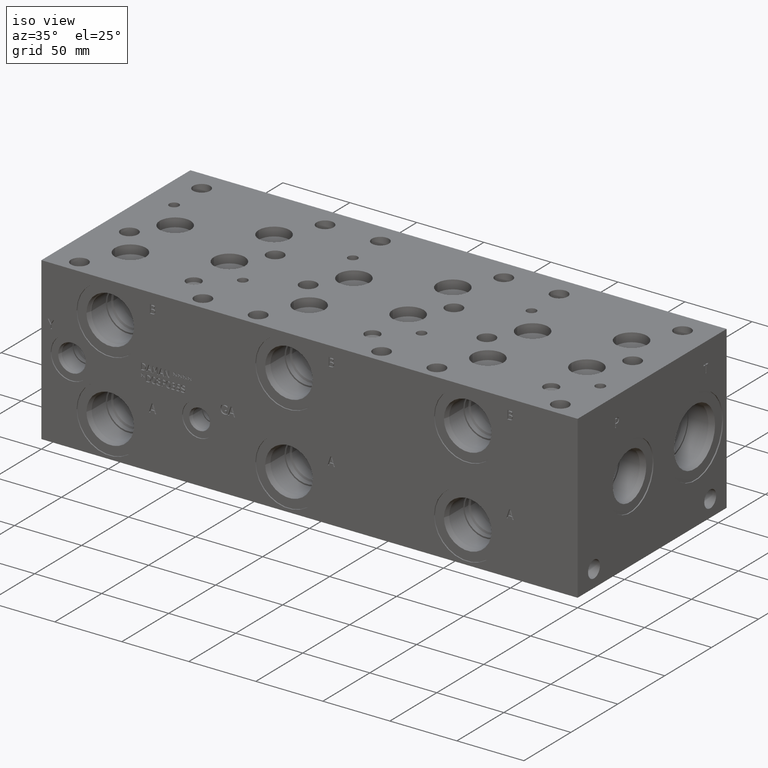
[diagram: clean part render]
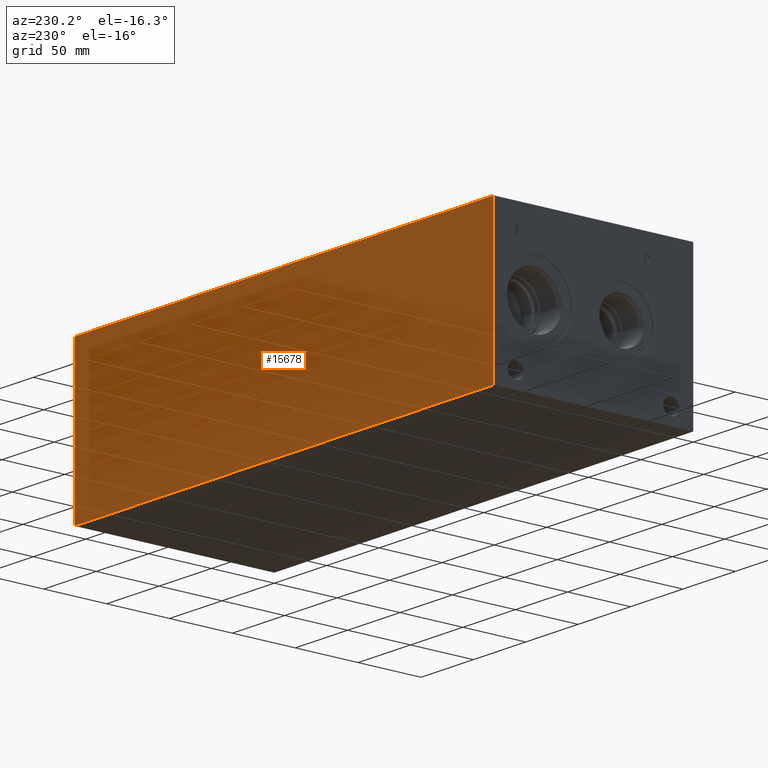
[diagram: tour spotlight — one face highlighted and labeled with its STEP entity id]
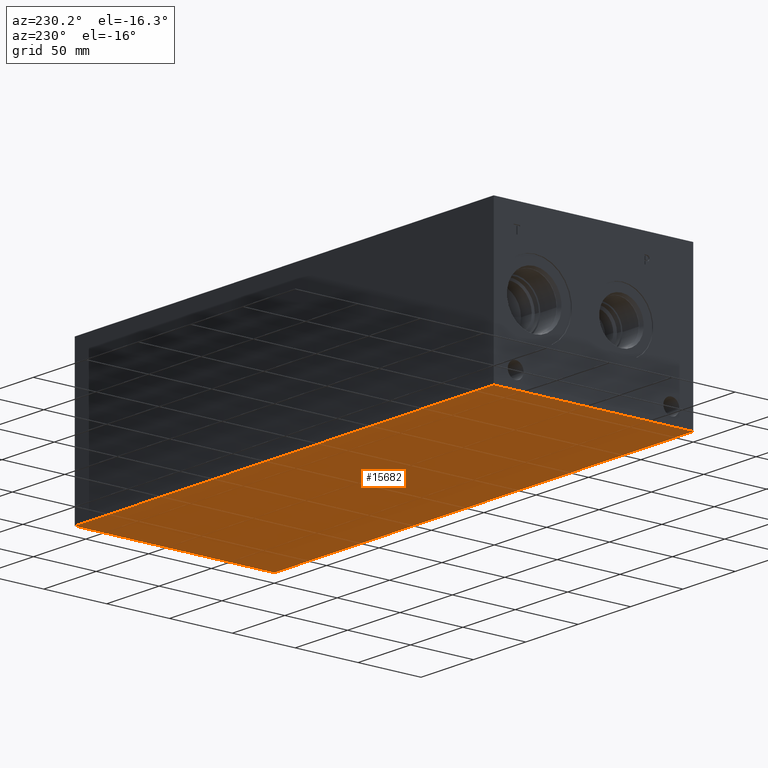
[diagram: tour spotlight — one face highlighted and labeled with its STEP entity id]
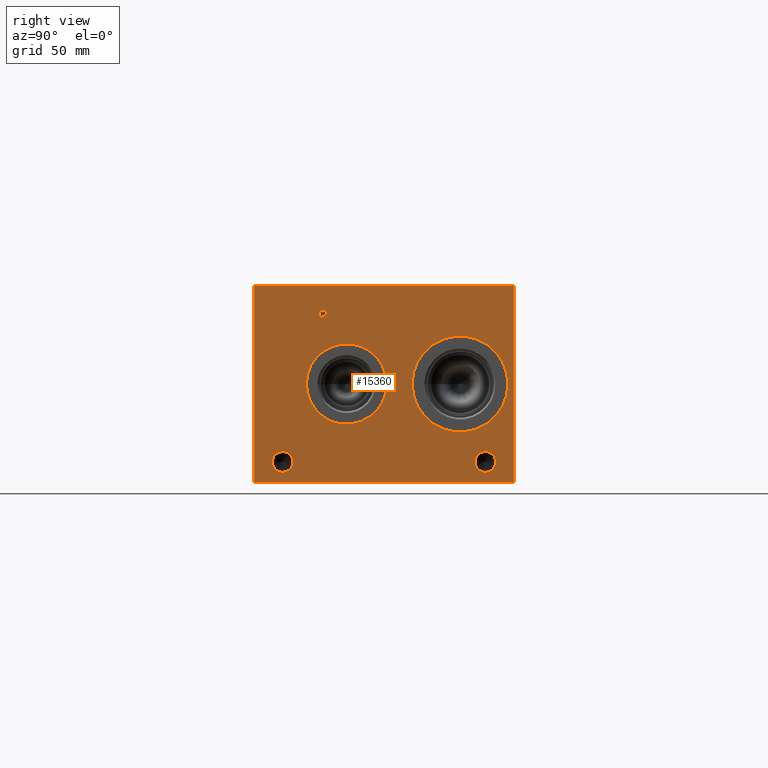
[diagram: tour spotlight — one face highlighted and labeled with its STEP entity id]
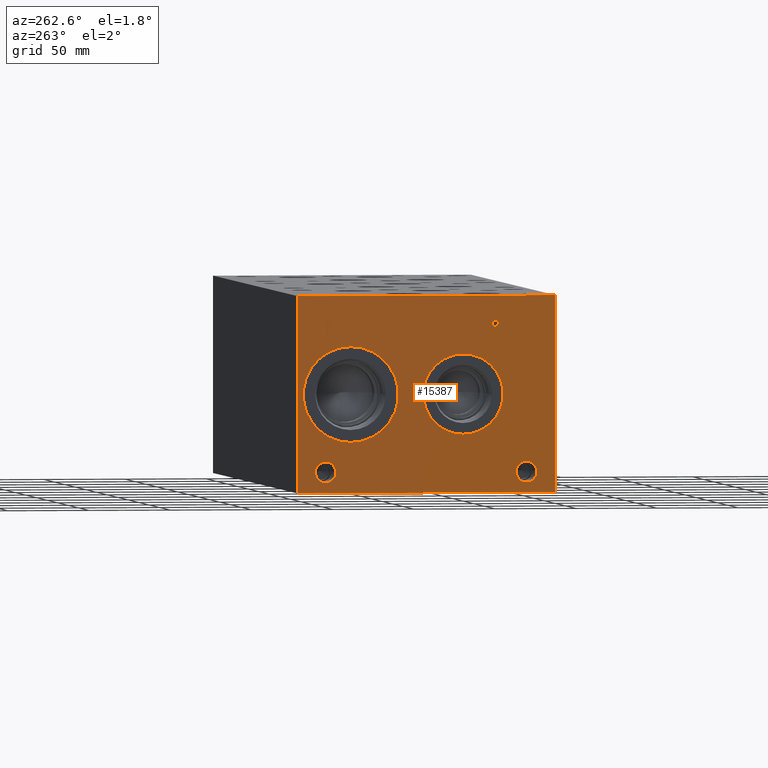
[diagram: tour spotlight — one face highlighted and labeled with its STEP entity id]
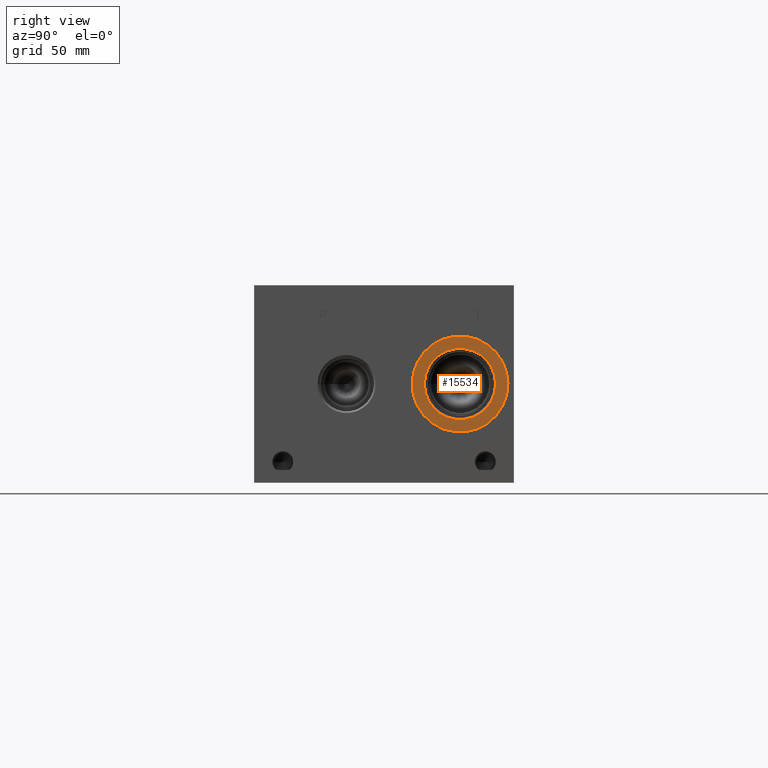
[diagram: tour spotlight — one face highlighted and labeled with its STEP entity id]
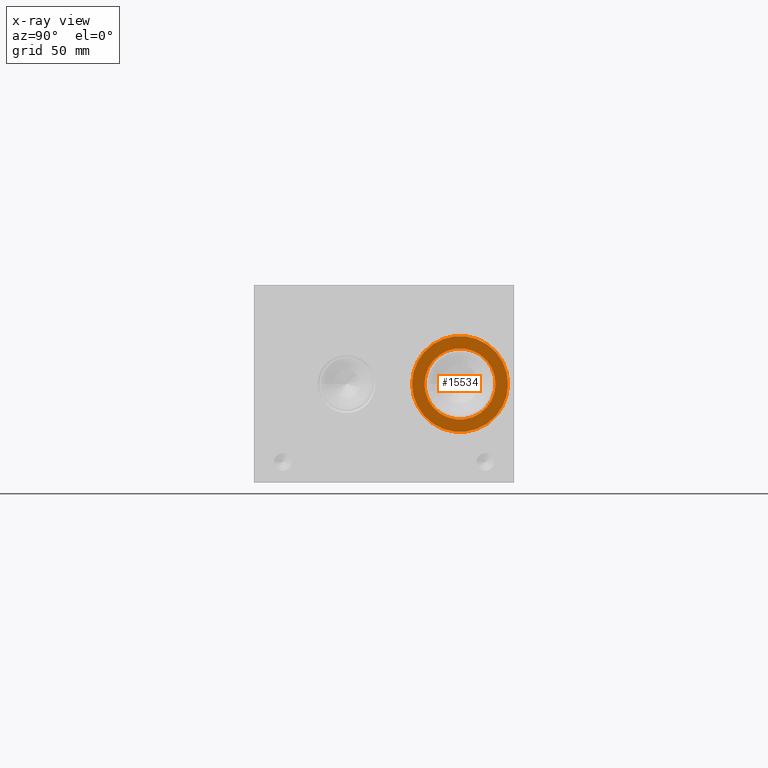
[diagram: x-ray of the same camera — body ghosted, this tour face saturated]
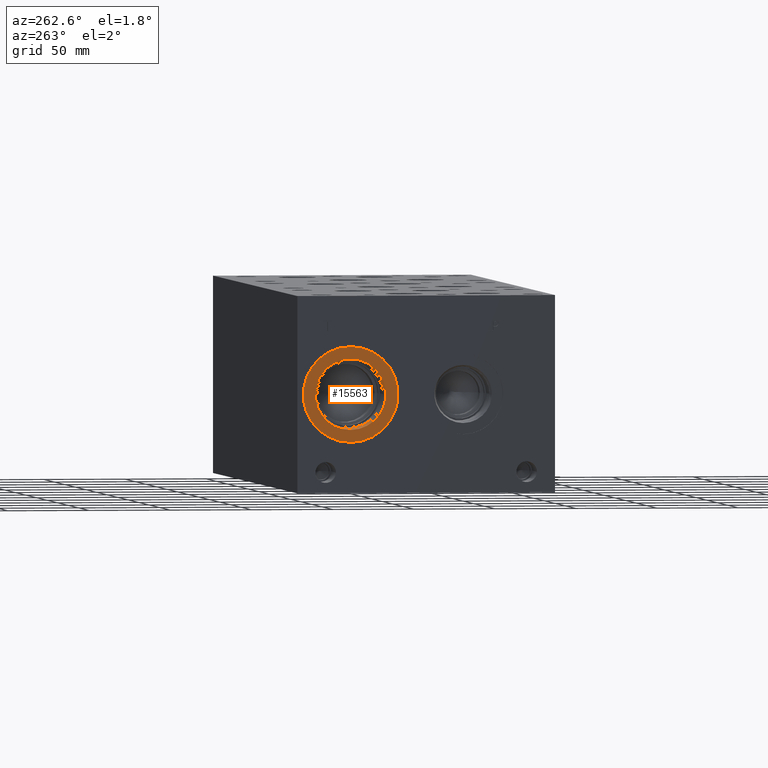
[diagram: tour spotlight — one face highlighted and labeled with its STEP entity id]
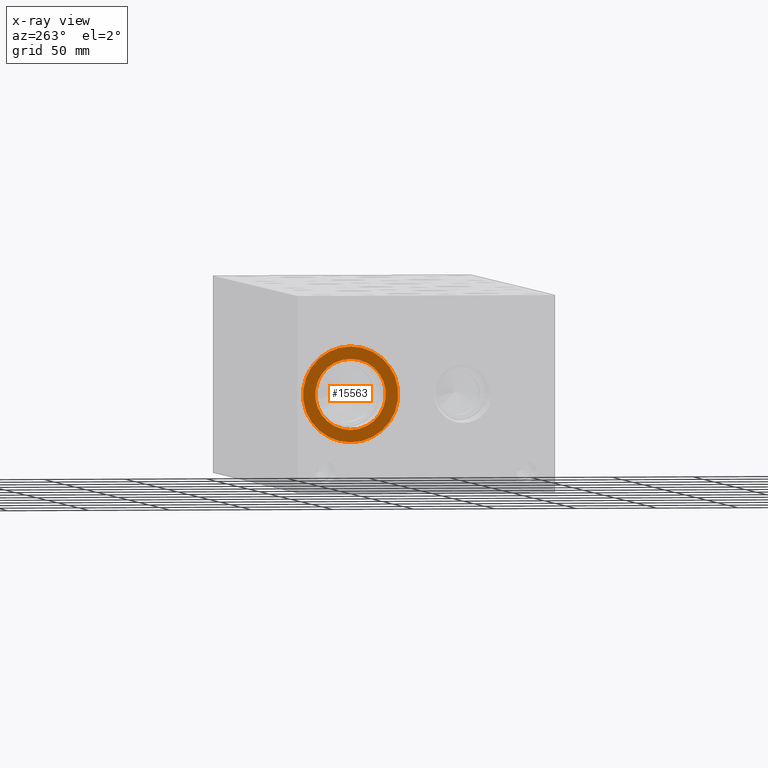
[diagram: x-ray of the same camera — body ghosted, this tour face saturated]
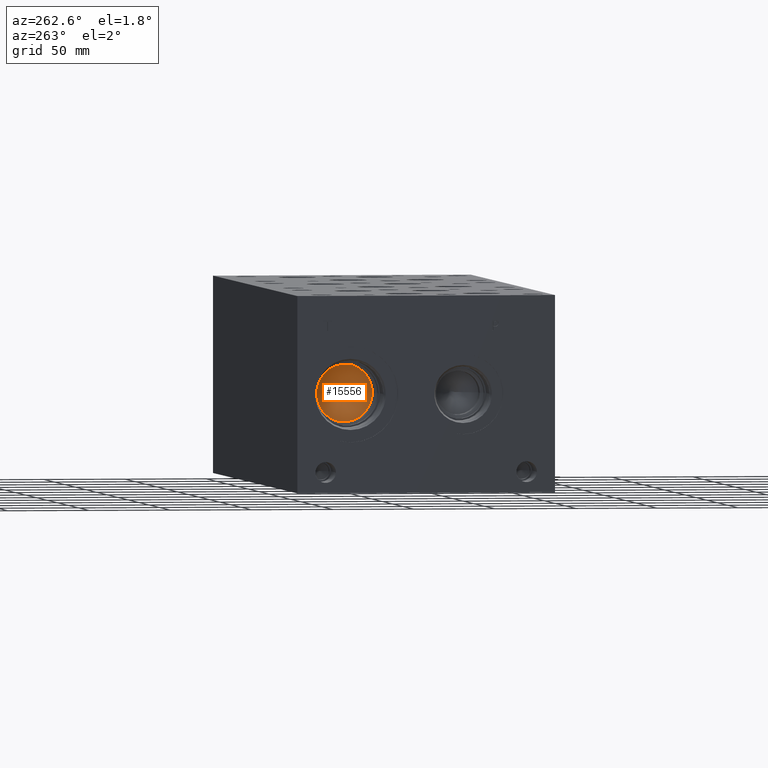
[diagram: tour spotlight — one face highlighted and labeled with its STEP entity id]
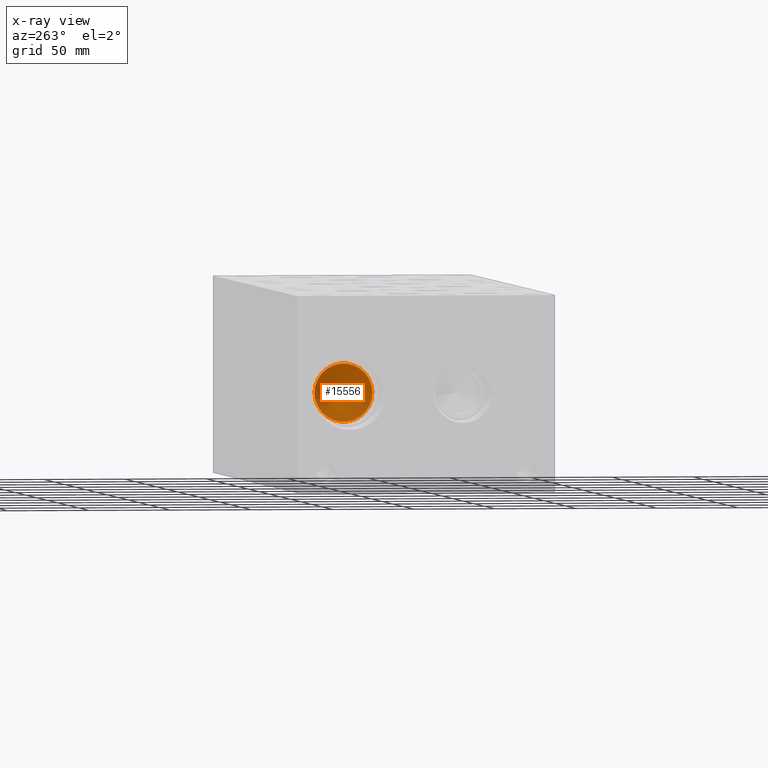
[diagram: x-ray of the same camera — body ghosted, this tour face saturated]
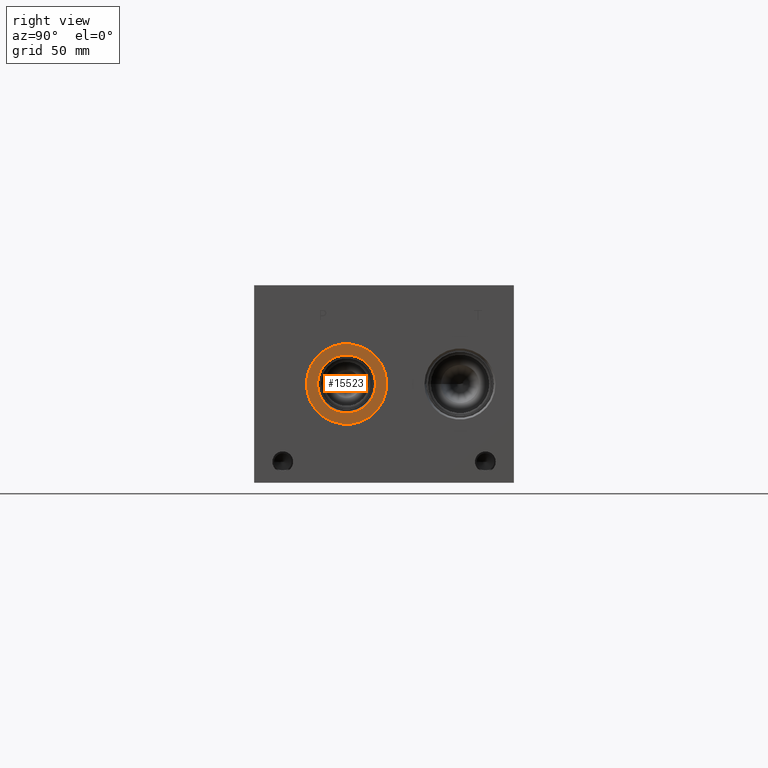
[diagram: tour spotlight — one face highlighted and labeled with its STEP entity id]
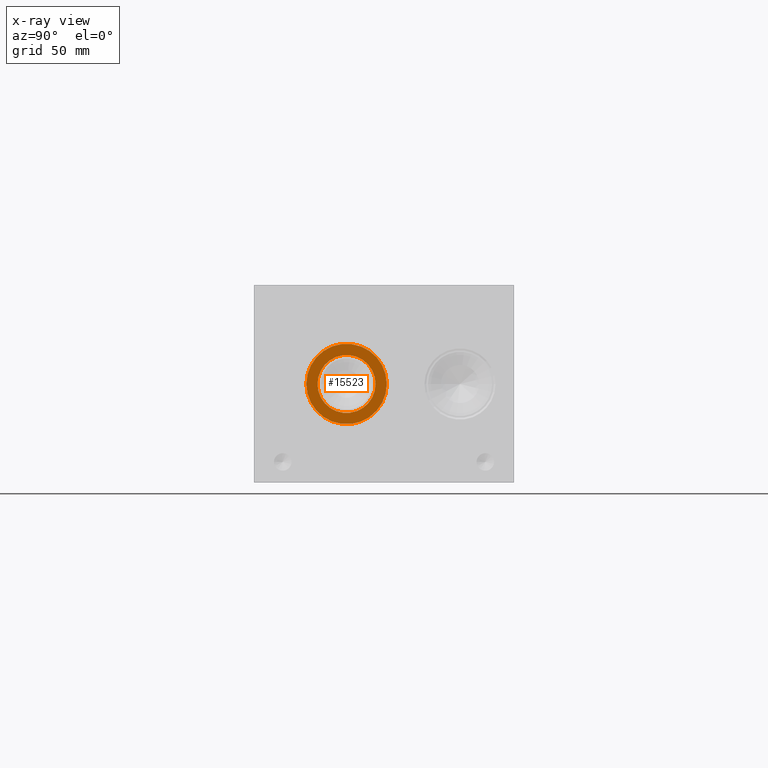
[diagram: x-ray of the same camera — body ghosted, this tour face saturated]
A machine part: a face-by-face anatomy tour. The part has 823 B-rep faces; the first image is the clean iso view, then the 8 largest visible faces are spotlighted one at a time (largest first), each with its STEP entity span.

Face 1 — auxiliary view, entity #15678. In plain terms, the highlighted planar face has unit normal (0, 1, 0).
Definition (entity closure, byte-faithful):
#2258=FACE_OUTER_BOUND('',#3195,.T.);
#3195=EDGE_LOOP('',(#13837,#13838,#13839,#13840));
#4245=LINE('',#25505,#5572);
#4305=LINE('',#25778,#5632);
#4564=LINE('',#27307,#5891);
#4565=LINE('',#27308,#5892);
#5572=VECTOR('',#18495,10.);
#5632=VECTOR('',#18609,10.);
#5891=VECTOR('',#20358,10.);
#5892=VECTOR('',#20359,10.);
#6819=VERTEX_POINT('',#25502);
#6820=VERTEX_POINT('',#25504);
#6877=VERTEX_POINT('',#25774);
#6878=VERTEX_POINT('',#25776);
#8784=EDGE_CURVE('',#6819,#6820,#4245,.T.);
#8868=EDGE_CURVE('',#6877,#6878,#4305,.T.);
#9581=EDGE_CURVE('',#6819,#6877,#4564,.T.);
#9582=EDGE_CURVE('',#6820,#6878,#4565,.T.);
#13837=ORIENTED_EDGE('',*,*,#9581,.T.);
#13838=ORIENTED_EDGE('',*,*,#8868,.T.);
#13839=ORIENTED_EDGE('',*,*,#9582,.F.);
#13840=ORIENTED_EDGE('',*,*,#8784,.F.);
#14338=PLANE('',#16806);
#15678=ADVANCED_FACE('',(#2258),#14338,.T.);
#16806=AXIS2_PLACEMENT_3D('',#27306,#20356,#20357);
#18495=DIRECTION('',(0.,0.,1.));
#18609=DIRECTION('',(0.,0.,1.));
#20356=DIRECTION('center_axis',(0.,1.,0.));
#20357=DIRECTION('ref_axis',(-1.,0.,0.));
#20358=DIRECTION('',(-1.,0.,0.));
#20359=DIRECTION('',(-1.,0.,0.));
#25502=CARTESIAN_POINT('',(400.05,158.75,0.));
#25504=CARTESIAN_POINT('',(400.05,158.75,120.65));
#25505=CARTESIAN_POINT('',(400.05,158.75,0.));
#25774=CARTESIAN_POINT('',(0.,158.75,0.));
#25776=CARTESIAN_POINT('',(0.,158.75,120.65));
#25778=CARTESIAN_POINT('',(0.,158.75,0.));
#27306=CARTESIAN_POINT('Origin',(400.05,158.75,0.));
#27307=CARTESIAN_POINT('',(400.05,158.75,0.));
#27308=CARTESIAN_POINT('',(400.05,158.75,120.65));

Face 2 — auxiliary view, entity #15682. In plain terms, the highlighted planar face has unit normal (0, 0, 1).
Definition (entity closure, byte-faithful):
#2262=FACE_OUTER_BOUND('',#3238,.T.);
#3238=EDGE_LOOP('',(#13937,#13938,#13939,#13940));
#3272=LINE('',#20439,#4599);
#4244=LINE('',#25503,#5571);
#4303=LINE('',#25775,#5630);
#4564=LINE('',#27307,#5891);
#4599=VECTOR('',#16872,10.);
#5571=VECTOR('',#18494,10.);
#5630=VECTOR('',#18607,10.);
#5891=VECTOR('',#20358,10.);
#5915=VERTEX_POINT('',#20437);
#5916=VERTEX_POINT('',#20438);
#6819=VERTEX_POINT('',#25502);
#6877=VERTEX_POINT('',#25774);
#7437=EDGE_CURVE('',#5915,#5916,#3272,.T.);
#8783=EDGE_CURVE('',#5916,#6819,#4244,.T.);
#8866=EDGE_CURVE('',#6877,#5915,#4303,.T.);
#9581=EDGE_CURVE('',#6819,#6877,#4564,.T.);
#13937=ORIENTED_EDGE('',*,*,#7437,.F.);
#13938=ORIENTED_EDGE('',*,*,#8866,.F.);
#13939=ORIENTED_EDGE('',*,*,#9581,.F.);
#13940=ORIENTED_EDGE('',*,*,#8783,.F.);
#14342=PLANE('',#16810);
#15682=ADVANCED_FACE('',(#2262),#14342,.F.);
#16810=AXIS2_PLACEMENT_3D('',#27312,#20366,#20367);
#16872=DIRECTION('',(1.,0.,0.));
#18494=DIRECTION('',(0.,1.,0.));
#18607=DIRECTION('',(0.,-1.,0.));
#20358=DIRECTION('',(-1.,0.,0.));
#20366=DIRECTION('center_axis',(0.,0.,1.));
#20367=DIRECTION('ref_axis',(1.,0.,0.));
#20437=CARTESIAN_POINT('',(0.,0.,0.));
#20438=CARTESIAN_POINT('',(400.05,0.,0.));
#20439=CARTESIAN_POINT('',(0.,0.,0.));
#25502=CARTESIAN_POINT('',(400.05,158.75,0.));
#25503=CARTESIAN_POINT('',(400.05,0.,0.));
#25774=CARTESIAN_POINT('',(0.,158.75,0.));
#25775=CARTESIAN_POINT('',(0.,158.75,0.));
#27307=CARTESIAN_POINT('',(400.05,158.75,0.));
#27312=CARTESIAN_POINT('Origin',(200.025,79.375,0.));

Face 3 — right view, entity #15360. In plain terms, the highlighted planar face has unit normal (1, 0, 0).
Definition (entity closure, byte-faithful):
#451=CIRCLE('',#16035,29.2862);
#452=CIRCLE('',#16036,29.2862);
#453=CIRCLE('',#16037,24.5618);
#454=CIRCLE('',#16038,24.5618);
#455=CIRCLE('',#16039,6.35);
#456=CIRCLE('',#16040,6.35);
#457=CIRCLE('',#16041,6.35);
#458=CIRCLE('',#16042,6.35);
#1263=B_SPLINE_CURVE_WITH_KNOTS('',2,(#25404,#25405,#25406,#25407),
 .UNSPECIFIED.,.F.,.F.,(3,1,3),(0.,1.,2.),.UNSPECIFIED.);
#1265=B_SPLINE_CURVE_WITH_KNOTS('',2,(#25425,#25426,#25427,#25428),
 .UNSPECIFIED.,.F.,.F.,(3,1,3),(0.,1.,2.),.UNSPECIFIED.);
#1267=B_SPLINE_CURVE_WITH_KNOTS('',2,(#25474,#25475,#25476,#25477),
 .UNSPECIFIED.,.F.,.F.,(3,1,3),(0.,1.,2.),.UNSPECIFIED.);
#1269=B_SPLINE_CURVE_WITH_KNOTS('',2,(#25492,#25493,#25494,#25495),
 .UNSPECIFIED.,.F.,.F.,(3,1,3),(0.,1.,2.),.UNSPECIFIED.);
#1342=FACE_BOUND('',#2819,.T.);
#1343=FACE_BOUND('',#2820,.T.);
#1344=FACE_BOUND('',#2821,.T.);
#1345=FACE_BOUND('',#2822,.T.);
#1346=FACE_BOUND('',#2823,.T.);
#1347=FACE_BOUND('',#2824,.T.);
#1940=FACE_OUTER_BOUND('',#2818,.T.);
#2818=EDGE_LOOP('',(#12298,#12299,#12300,#12301));
#2819=EDGE_LOOP('',(#12302,#12303));
#2820=EDGE_LOOP('',(#12304,#12305));
#2821=EDGE_LOOP('',(#12306,#12307));
#2822=EDGE_LOOP('',(#12308,#12309));
#2823=EDGE_LOOP('',(#12310,#12311,#12312,#12313,#12314,#12315,#12316,#12317));
#2824=EDGE_LOOP('',(#12318,#12319,#12320,#12321,#12322,#12323,#12324,#12325,
#12326));
#3273=LINE('',#20441,#4600);
#4228=LINE('',#25437,#5555);
#4231=LINE('',#25443,#5558);
#4234=LINE('',#25449,#5561);
#4237=LINE('',#25455,#5564);
#4240=LINE('',#25461,#5567);
#4244=LINE('',#25503,#5571);
#4245=LINE('',#25505,#5572);
#4246=LINE('',#25506,#5573);
#4247=LINE('',#25525,#5574);
#4248=LINE('',#25527,#5575);
#4249=LINE('',#25529,#5576);
#4250=LINE('',#25531,#5577);
#4251=LINE('',#25533,#5578);
#4252=LINE('',#25535,#5579);
#4253=LINE('',#25537,#5580);
#4254=LINE('',#25538,#5581);
#4600=VECTOR('',#16873,10.);
#5555=VECTOR('',#18466,10.);
#5558=VECTOR('',#18471,10.);
#5561=VECTOR('',#18476,10.);
#5564=VECTOR('',#18481,10.);
#5567=VECTOR('',#18486,10.);
#5571=VECTOR('',#18494,10.);
#5572=VECTOR('',#18495,10.);
#5573=VECTOR('',#18496,10.);
#5574=VECTOR('',#18513,10.);
#5575=VECTOR('',#18514,10.);
#5576=VECTOR('',#18515,10.);
#5577=VECTOR('',#18516,10.);
#5578=VECTOR('',#18517,10.);
#5579=VECTOR('',#18518,10.);
#5580=VECTOR('',#18519,10.);
#5581=VECTOR('',#18520,10.);
#5916=VERTEX_POINT('',#20438);
#5917=VERTEX_POINT('',#20440);
#6801=VERTEX_POINT('',#25402);
#6802=VERTEX_POINT('',#25403);
#6805=VERTEX_POINT('',#25424);
#6807=VERTEX_POINT('',#25436);
#6809=VERTEX_POINT('',#25442);
#6811=VERTEX_POINT('',#25448);
#6813=VERTEX_POINT('',#25454);
#6815=VERTEX_POINT('',#25460);
#6817=VERTEX_POINT('',#25473);
#6819=VERTEX_POINT('',#25502);
#6820=VERTEX_POINT('',#25504);
#6821=VERTEX_POINT('',#25507);
#6822=VERTEX_POINT('',#25508);
#6823=VERTEX_POINT('',#25511);
#6824=VERTEX_POINT('',#25512);
#6825=VERTEX_POINT('',#25515);
#6826=VERTEX_POINT('',#25516);
#6827=VERTEX_POINT('',#25519);
#6828=VERTEX_POINT('',#25520);
#6829=VERTEX_POINT('',#25523);
#6830=VERTEX_POINT('',#25524);
#6831=VERTEX_POINT('',#25526);
#6832=VERTEX_POINT('',#25528);
#6833=VERTEX_POINT('',#25530);
#6834=VERTEX_POINT('',#25532);
#6835=VERTEX_POINT('',#25534);
#6836=VERTEX_POINT('',#25536);
#7438=EDGE_CURVE('',#5916,#5917,#3273,.T.);
#8756=EDGE_CURVE('',#6801,#6802,#1263,.T.);
#8760=EDGE_CURVE('',#6805,#6801,#1265,.T.);
#8763=EDGE_CURVE('',#6807,#6805,#4228,.T.);
#8766=EDGE_CURVE('',#6809,#6807,#4231,.T.);
#8769=EDGE_CURVE('',#6811,#6809,#4234,.T.);
#8772=EDGE_CURVE('',#6813,#6811,#4237,.T.);
#8775=EDGE_CURVE('',#6815,#6813,#4240,.T.);
#8778=EDGE_CURVE('',#6817,#6815,#1267,.T.);
#8781=EDGE_CURVE('',#6802,#6817,#1269,.T.);
#8783=EDGE_CURVE('',#5916,#6819,#4244,.T.);
#8784=EDGE_CURVE('',#6819,#6820,#4245,.T.);
#8785=EDGE_CURVE('',#5917,#6820,#4246,.T.);
#8786=EDGE_CURVE('',#6821,#6822,#451,.T.);
#8787=EDGE_CURVE('',#6822,#6821,#452,.T.);
#8788=EDGE_CURVE('',#6823,#6824,#453,.T.);
#8789=EDGE_CURVE('',#6824,#6823,#454,.T.);
#8790=EDGE_CURVE('',#6825,#6826,#455,.T.);
#8791=EDGE_CURVE('',#6826,#6825,#456,.T.);
#8792=EDGE_CURVE('',#6827,#6828,#457,.T.);
#8793=EDGE_CURVE('',#6828,#6827,#458,.T.);
#8794=EDGE_CURVE('',#6829,#6830,#4247,.T.);
#8795=EDGE_CURVE('',#6830,#6831,#4248,.T.);
#8796=EDGE_CURVE('',#6831,#6832,#4249,.T.);
#8797=EDGE_CURVE('',#6832,#6833,#4250,.T.);
#8798=EDGE_CURVE('',#6833,#6834,#4251,.T.);
#8799=EDGE_CURVE('',#6834,#6835,#4252,.T.);
#8800=EDGE_CURVE('',#6835,#6836,#4253,.T.);
#8801=EDGE_CURVE('',#6836,#6829,#4254,.T.);
#12298=ORIENTED_EDGE('',*,*,#8783,.T.);
#12299=ORIENTED_EDGE('',*,*,#8784,.T.);
#12300=ORIENTED_EDGE('',*,*,#8785,.F.);
#12301=ORIENTED_EDGE('',*,*,#7438,.F.);
#12302=ORIENTED_EDGE('',*,*,#8786,.T.);
#12303=ORIENTED_EDGE('',*,*,#8787,.T.);
#12304=ORIENTED_EDGE('',*,*,#8788,.T.);
#12305=ORIENTED_EDGE('',*,*,#8789,.T.);
#12306=ORIENTED_EDGE('',*,*,#8790,.T.);
#12307=ORIENTED_EDGE('',*,*,#8791,.T.);
#12308=ORIENTED_EDGE('',*,*,#8792,.T.);
#12309=ORIENTED_EDGE('',*,*,#8793,.T.);
#12310=ORIENTED_EDGE('',*,*,#8794,.T.);
#12311=ORIENTED_EDGE('',*,*,#8795,.T.);
#12312=ORIENTED_EDGE('',*,*,#8796,.T.);
#12313=ORIENTED_EDGE('',*,*,#8797,.T.);
#12314=ORIENTED_EDGE('',*,*,#8798,.T.);
#12315=ORIENTED_EDGE('',*,*,#8799,.T.);
#12316=ORIENTED_EDGE('',*,*,#8800,.T.);
#12317=ORIENTED_EDGE('',*,*,#8801,.T.);
#12318=ORIENTED_EDGE('',*,*,#8756,.T.);
#12319=ORIENTED_EDGE('',*,*,#8781,.T.);
#12320=ORIENTED_EDGE('',*,*,#8778,.T.);
#12321=ORIENTED_EDGE('',*,*,#8775,.T.);
#12322=ORIENTED_EDGE('',*,*,#8772,.T.);
#12323=ORIENTED_EDGE('',*,*,#8769,.T.);
#12324=ORIENTED_EDGE('',*,*,#8766,.T.);
#12325=ORIENTED_EDGE('',*,*,#8763,.T.);
#12326=ORIENTED_EDGE('',*,*,#8760,.T.);
#14262=PLANE('',#16034);
#15360=ADVANCED_FACE('',(#1940,#1342,#1343,#1344,#1345,#1346,#1347),#14262,
 .T.);
#16034=AXIS2_PLACEMENT_3D('',#25501,#18492,#18493);
#16035=AXIS2_PLACEMENT_3D('',#25509,#18497,#18498);
#16036=AXIS2_PLACEMENT_3D('',#25510,#18499,#18500);
#16037=AXIS2_PLACEMENT_3D('',#25513,#18501,#18502);
#16038=AXIS2_PLACEMENT_3D('',#25514,#18503,#18504);
#16039=AXIS2_PLACEMENT_3D('',#25517,#18505,#18506);
#16040=AXIS2_PLACEMENT_3D('',#25518,#18507,#18508);
#16041=AXIS2_PLACEMENT_3D('',#25521,#18509,#18510);
#16042=AXIS2_PLACEMENT_3D('',#25522,#18511,#18512);
#16873=DIRECTION('',(0.,0.,1.));
#18466=DIRECTION('',(0.,1.,0.));
#18471=DIRECTION('',(0.,0.,1.));
#18476=DIRECTION('',(0.,-1.,0.));
#18481=DIRECTION('',(0.,0.,-1.));
#18486=DIRECTION('',(0.,-1.,0.));
#18492=DIRECTION('center_axis',(1.,0.,0.));
#18493=DIRECTION('ref_axis',(0.,1.,0.));
#18494=DIRECTION('',(0.,1.,0.));
#18495=DIRECTION('',(0.,0.,1.));
#18496=DIRECTION('',(0.,1.,0.));
#18497=DIRECTION('center_axis',(-1.,0.,0.));
#18498=DIRECTION('ref_axis',(0.,1.,0.));
#18499=DIRECTION('center_axis',(-1.,0.,0.));
#18500=DIRECTION('ref_axis',(0.,1.,0.));
#18501=DIRECTION('center_axis',(-1.,0.,0.));
#18502=DIRECTION('ref_axis',(0.,1.,0.));
#18503=DIRECTION('center_axis',(-1.,0.,0.));
#18504=DIRECTION('ref_axis',(0.,1.,0.));
#18505=DIRECTION('center_axis',(-1.,0.,0.));
#18506=DIRECTION('ref_axis',(0.,1.,0.));
#18507=DIRECTION('center_axis',(-1.,0.,0.));
#18508=DIRECTION('ref_axis',(0.,1.,0.));
#18509=DIRECTION('center_axis',(-1.,0.,0.));
#18510=DIRECTION('ref_axis',(0.,1.,0.));
#18511=DIRECTION('center_axis',(-1.,0.,0.));
#18512=DIRECTION('ref_axis',(0.,1.,0.));
#18513=DIRECTION('',(0.,-1.,0.));
#18514=DIRECTION('',(0.,0.,1.));
#18515=DIRECTION('',(0.,-1.,0.));
#18516=DIRECTION('',(0.,0.,1.));
#18517=DIRECTION('',(0.,1.,0.));
#18518=DIRECTION('',(0.,0.,-1.));
#18519=DIRECTION('',(0.,-1.,0.));
#18520=DIRECTION('',(0.,0.,-1.));
#20438=CARTESIAN_POINT('',(400.05,0.,0.));
#20440=CARTESIAN_POINT('',(400.05,0.,120.65));
#20441=CARTESIAN_POINT('',(400.05,0.,0.));
#25402=CARTESIAN_POINT('',(400.05,43.3721672023594,105.140768143971));
#25403=CARTESIAN_POINT('',(400.05,44.128609654532,103.622737372604));
#25404=CARTESIAN_POINT('Ctrl Pts',(400.05,43.3721672023594,105.140768143971));
#25405=CARTESIAN_POINT('Ctrl Pts',(400.05,43.7272320268486,104.898912393956));
#25406=CARTESIAN_POINT('Ctrl Pts',(400.05,44.128609654532,104.152761675827));
#25407=CARTESIAN_POINT('Ctrl Pts',(400.05,44.128609654532,103.622737372604));
#25424=CARTESIAN_POINT('',(400.05,41.7100521543883,105.536999904633));
#25425=CARTESIAN_POINT('Ctrl Pts',(400.05,41.7100521543883,105.536999904633));
#25426=CARTESIAN_POINT('Ctrl Pts',(400.05,42.2760975267624,105.536999904633));
#25427=CARTESIAN_POINT('Ctrl Pts',(400.05,43.068561048086,105.351748691856));
#25428=CARTESIAN_POINT('Ctrl Pts',(400.05,43.3721672023594,105.140768143971));
#25436=CARTESIAN_POINT('',(400.05,40.1148333776978,105.536999904633));
#25437=CARTESIAN_POINT('',(400.05,20.0574166888489,105.536999904633));
#25442=CARTESIAN_POINT('',(400.05,40.1148333776978,99.187));
#25443=CARTESIAN_POINT('',(400.05,40.1148333776978,49.5935));
#25448=CARTESIAN_POINT('',(400.05,40.9587555692373,99.187));
#25449=CARTESIAN_POINT('',(400.05,20.4793777846186,99.187));
#25454=CARTESIAN_POINT('',(400.05,40.9587555692373,101.554098829928));
#25455=CARTESIAN_POINT('',(400.05,40.9587555692373,50.7770494149639));
#25460=CARTESIAN_POINT('',(400.05,41.6740310852372,101.554098829928));
#25461=CARTESIAN_POINT('',(400.05,20.8370155426186,101.554098829928));
#25473=CARTESIAN_POINT('',(400.05,43.5728560162011,102.21276980869));
#25474=CARTESIAN_POINT('Ctrl Pts',(400.05,43.5728560162011,102.21276980869));
#25475=CARTESIAN_POINT('Ctrl Pts',(400.05,43.2435205268198,101.888580186331));
#25476=CARTESIAN_POINT('Ctrl Pts',(400.05,42.3532855320861,101.554098829928));
#25477=CARTESIAN_POINT('Ctrl Pts',(400.05,41.6740310852372,101.554098829928));
#25492=CARTESIAN_POINT('Ctrl Pts',(400.05,44.128609654532,103.622737372604));
#25493=CARTESIAN_POINT('Ctrl Pts',(400.05,44.128609654532,103.211068010877));
#25494=CARTESIAN_POINT('Ctrl Pts',(400.05,43.8352952343018,102.47006315977));
#25495=CARTESIAN_POINT('Ctrl Pts',(400.05,43.5728560162011,102.21276980869));
#25501=CARTESIAN_POINT('Origin',(400.05,0.,0.));
#25502=CARTESIAN_POINT('',(400.05,158.75,0.));
#25503=CARTESIAN_POINT('',(400.05,0.,0.));
#25504=CARTESIAN_POINT('',(400.05,158.75,120.65));
#25505=CARTESIAN_POINT('',(400.05,158.75,0.));
#25506=CARTESIAN_POINT('',(400.05,0.,120.65));
#25507=CARTESIAN_POINT('',(400.05,155.1178,60.325));
#25508=CARTESIAN_POINT('',(400.05,96.5454,60.325));
#25509=CARTESIAN_POINT('Origin',(400.05,125.8316,60.325));
#25510=CARTESIAN_POINT('Origin',(400.05,125.8316,60.325));
#25511=CARTESIAN_POINT('',(400.05,81.0514,60.325));
#25512=CARTESIAN_POINT('',(400.05,31.9278,60.325));
#25513=CARTESIAN_POINT('Origin',(400.05,56.4896,60.325));
#25514=CARTESIAN_POINT('Origin',(400.05,56.4896,60.325));
#25515=CARTESIAN_POINT('',(400.05,147.6502,12.7));
#25516=CARTESIAN_POINT('',(400.05,134.9502,12.7));
#25517=CARTESIAN_POINT('Origin',(400.05,141.3002,12.7));
#25518=CARTESIAN_POINT('Origin',(400.05,141.3002,12.7));
#25519=CARTESIAN_POINT('',(400.05,23.8252,12.7));
#25520=CARTESIAN_POINT('',(400.05,11.1252,12.7));
#25521=CARTESIAN_POINT('Origin',(400.05,17.4752,12.7));
#25522=CARTESIAN_POINT('Origin',(400.05,17.4752,12.7));
#25523=CARTESIAN_POINT('',(400.05,137.182765271453,99.187));
#25524=CARTESIAN_POINT('',(400.05,136.338843079914,99.187));
#25525=CARTESIAN_POINT('',(400.05,68.5913826357265,99.187));
#25526=CARTESIAN_POINT('',(400.05,136.338843079914,104.785703319482));
#25527=CARTESIAN_POINT('',(400.05,136.338843079914,49.5935));
#25528=CARTESIAN_POINT('',(400.05,134.208454132978,104.785703319482));
#25529=CARTESIAN_POINT('',(400.05,68.1694215399568,104.785703319482));
#25530=CARTESIAN_POINT('',(400.05,134.208454132978,105.536999904633));
#25531=CARTESIAN_POINT('',(400.05,134.208454132978,52.3928516597408));
#25532=CARTESIAN_POINT('',(400.05,139.313154218388,105.536999904633));
#25533=CARTESIAN_POINT('',(400.05,67.1042270664892,105.536999904633));
#25534=CARTESIAN_POINT('',(400.05,139.313154218388,104.785703319482));
#25535=CARTESIAN_POINT('',(400.05,139.313154218388,52.7684999523163));
#25536=CARTESIAN_POINT('',(400.05,137.182765271453,104.785703319482));
#25537=CARTESIAN_POINT('',(400.05,69.656577109194,104.785703319482));
#25538=CARTESIAN_POINT('',(400.05,137.182765271453,52.3928516597408));

Face 4 — auxiliary view, entity #15387. In plain terms, the highlighted planar face has unit normal (-1, 0, 0).
Definition (entity closure, byte-faithful):
#459=CIRCLE('',#16062,29.2862);
#460=CIRCLE('',#16063,29.2862);
#461=CIRCLE('',#16064,24.5618);
#462=CIRCLE('',#16065,24.5618);
#463=CIRCLE('',#16066,6.35);
#464=CIRCLE('',#16067,6.35);
#465=CIRCLE('',#16068,6.35);
#466=CIRCLE('',#16069,6.35);
#1279=B_SPLINE_CURVE_WITH_KNOTS('',2,(#25676,#25677,#25678,#25679),
 .UNSPECIFIED.,.F.,.F.,(3,1,3),(0.,1.,2.),.UNSPECIFIED.);
#1281=B_SPLINE_CURVE_WITH_KNOTS('',2,(#25697,#25698,#25699,#25700),
 .UNSPECIFIED.,.F.,.F.,(3,1,3),(0.,1.,2.),.UNSPECIFIED.);
#1283=B_SPLINE_CURVE_WITH_KNOTS('',2,(#25746,#25747,#25748,#25749),
 .UNSPECIFIED.,.F.,.F.,(3,1,3),(0.,1.,2.),.UNSPECIFIED.);
#1285=B_SPLINE_CURVE_WITH_KNOTS('',2,(#25764,#25765,#25766,#25767),
 .UNSPECIFIED.,.F.,.F.,(3,1,3),(0.,1.,2.),.UNSPECIFIED.);
#1349=FACE_BOUND('',#2853,.T.);
#1350=FACE_BOUND('',#2854,.T.);
#1351=FACE_BOUND('',#2855,.T.);
#1352=FACE_BOUND('',#2856,.T.);
#1353=FACE_BOUND('',#2857,.T.);
#1354=FACE_BOUND('',#2858,.T.);
#1967=FACE_OUTER_BOUND('',#2852,.T.);
#2852=EDGE_LOOP('',(#12447,#12448,#12449,#12450));
#2853=EDGE_LOOP('',(#12451,#12452));
#2854=EDGE_LOOP('',(#12453,#12454));
#2855=EDGE_LOOP('',(#12455,#12456));
#2856=EDGE_LOOP('',(#12457,#12458));
#2857=EDGE_LOOP('',(#12459,#12460,#12461,#12462,#12463,#12464,#12465,#12466));
#2858=EDGE_LOOP('',(#12467,#12468,#12469,#12470,#12471,#12472,#12473,#12474,
#12475));
#3275=LINE('',#20444,#4602);
#4287=LINE('',#25709,#5614);
#4290=LINE('',#25715,#5617);
#4293=LINE('',#25721,#5620);
#4296=LINE('',#25727,#5623);
#4299=LINE('',#25733,#5626);
#4303=LINE('',#25775,#5630);
#4304=LINE('',#25777,#5631);
#4305=LINE('',#25778,#5632);
#4306=LINE('',#25797,#5633);
#4307=LINE('',#25799,#5634);
#4308=LINE('',#25801,#5635);
#4309=LINE('',#25803,#5636);
#4310=LINE('',#25805,#5637);
#4311=LINE('',#25807,#5638);
#4312=LINE('',#25809,#5639);
#4313=LINE('',#25810,#5640);
#4602=VECTOR('',#16875,10.);
#5614=VECTOR('',#18579,10.);
#5617=VECTOR('',#18584,10.);
#5620=VECTOR('',#18589,10.);
#5623=VECTOR('',#18594,10.);
#5626=VECTOR('',#18599,10.);
#5630=VECTOR('',#18607,10.);
#5631=VECTOR('',#18608,10.);
#5632=VECTOR('',#18609,10.);
#5633=VECTOR('',#18626,10.);
#5634=VECTOR('',#18627,10.);
#5635=VECTOR('',#18628,10.);
#5636=VECTOR('',#18629,10.);
#5637=VECTOR('',#18630,10.);
#5638=VECTOR('',#18631,10.);
#5639=VECTOR('',#18632,10.);
#5640=VECTOR('',#18633,10.);
#5915=VERTEX_POINT('',#20437);
#5918=VERTEX_POINT('',#20442);
#6859=VERTEX_POINT('',#25674);
#6860=VERTEX_POINT('',#25675);
#6863=VERTEX_POINT('',#25696);
#6865=VERTEX_POINT('',#25708);
#6867=VERTEX_POINT('',#25714);
#6869=VERTEX_POINT('',#25720);
#6871=VERTEX_POINT('',#25726);
#6873=VERTEX_POINT('',#25732);
#6875=VERTEX_POINT('',#25745);
#6877=VERTEX_POINT('',#25774);
#6878=VERTEX_POINT('',#25776);
#6879=VERTEX_POINT('',#25779);
#6880=VERTEX_POINT('',#25780);
#6881=VERTEX_POINT('',#25783);
#6882=VERTEX_POINT('',#25784);
#6883=VERTEX_POINT('',#25787);
#6884=VERTEX_POINT('',#25788);
#6885=VERTEX_POINT('',#25791);
#6886=VERTEX_POINT('',#25792);
#6887=VERTEX_POINT('',#25795);
#6888=VERTEX_POINT('',#25796);
#6889=VERTEX_POINT('',#25798);
#6890=VERTEX_POINT('',#25800);
#6891=VERTEX_POINT('',#25802);
#6892=VERTEX_POINT('',#25804);
#6893=VERTEX_POINT('',#25806);
#6894=VERTEX_POINT('',#25808);
#7440=EDGE_CURVE('',#5915,#5918,#3275,.T.);
#8839=EDGE_CURVE('',#6859,#6860,#1279,.T.);
#8843=EDGE_CURVE('',#6863,#6859,#1281,.T.);
#8846=EDGE_CURVE('',#6865,#6863,#4287,.T.);
#8849=EDGE_CURVE('',#6867,#6865,#4290,.T.);
#8852=EDGE_CURVE('',#6869,#6867,#4293,.T.);
#8855=EDGE_CURVE('',#6871,#6869,#4296,.T.);
#8858=EDGE_CURVE('',#6873,#6871,#4299,.T.);
#8861=EDGE_CURVE('',#6875,#6873,#1283,.T.);
#8864=EDGE_CURVE('',#6860,#6875,#1285,.T.);
#8866=EDGE_CURVE('',#6877,#5915,#4303,.T.);
#8867=EDGE_CURVE('',#6878,#5918,#4304,.T.);
#8868=EDGE_CURVE('',#6877,#6878,#4305,.T.);
#8869=EDGE_CURVE('',#6879,#6880,#459,.T.);
#8870=EDGE_CURVE('',#6880,#6879,#460,.T.);
#8871=EDGE_CURVE('',#6881,#6882,#461,.T.);
#8872=EDGE_CURVE('',#6882,#6881,#462,.T.);
#8873=EDGE_CURVE('',#6883,#6884,#463,.T.);
#8874=EDGE_CURVE('',#6884,#6883,#464,.T.);
#8875=EDGE_CURVE('',#6885,#6886,#465,.T.);
#8876=EDGE_CURVE('',#6886,#6885,#466,.T.);
#8877=EDGE_CURVE('',#6887,#6888,#4306,.T.);
#8878=EDGE_CURVE('',#6888,#6889,#4307,.T.);
#8879=EDGE_CURVE('',#6889,#6890,#4308,.T.);
#8880=EDGE_CURVE('',#6890,#6891,#4309,.T.);
#8881=EDGE_CURVE('',#6891,#6892,#4310,.T.);
#8882=EDGE_CURVE('',#6892,#6893,#4311,.T.);
#8883=EDGE_CURVE('',#6893,#6894,#4312,.T.);
#8884=EDGE_CURVE('',#6894,#6887,#4313,.T.);
#12447=ORIENTED_EDGE('',*,*,#8866,.T.);
#12448=ORIENTED_EDGE('',*,*,#7440,.T.);
#12449=ORIENTED_EDGE('',*,*,#8867,.F.);
#12450=ORIENTED_EDGE('',*,*,#8868,.F.);
#12451=ORIENTED_EDGE('',*,*,#8869,.T.);
#12452=ORIENTED_EDGE('',*,*,#8870,.T.);
#12453=ORIENTED_EDGE('',*,*,#8871,.T.);
#12454=ORIENTED_EDGE('',*,*,#8872,.T.);
#12455=ORIENTED_EDGE('',*,*,#8873,.T.);
#12456=ORIENTED_EDGE('',*,*,#8874,.T.);
#12457=ORIENTED_EDGE('',*,*,#8875,.T.);
#12458=ORIENTED_EDGE('',*,*,#8876,.T.);
#12459=ORIENTED_EDGE('',*,*,#8877,.T.);
#12460=ORIENTED_EDGE('',*,*,#8878,.T.);
#12461=ORIENTED_EDGE('',*,*,#8879,.T.);
#12462=ORIENTED_EDGE('',*,*,#8880,.T.);
#12463=ORIENTED_EDGE('',*,*,#8881,.T.);
#12464=ORIENTED_EDGE('',*,*,#8882,.T.);
#12465=ORIENTED_EDGE('',*,*,#8883,.T.);
#12466=ORIENTED_EDGE('',*,*,#8884,.T.);
#12467=ORIENTED_EDGE('',*,*,#8839,.T.);
#12468=ORIENTED_EDGE('',*,*,#8864,.T.);
#12469=ORIENTED_EDGE('',*,*,#8861,.T.);
#12470=ORIENTED_EDGE('',*,*,#8858,.T.);
#12471=ORIENTED_EDGE('',*,*,#8855,.T.);
#12472=ORIENTED_EDGE('',*,*,#8852,.T.);
#12473=ORIENTED_EDGE('',*,*,#8849,.T.);
#12474=ORIENTED_EDGE('',*,*,#8846,.T.);
#12475=ORIENTED_EDGE('',*,*,#8843,.T.);
#14281=PLANE('',#16061);
#15387=ADVANCED_FACE('',(#1967,#1349,#1350,#1351,#1352,#1353,#1354),#14281,
 .T.);
#16061=AXIS2_PLACEMENT_3D('',#25773,#18605,#18606);
#16062=AXIS2_PLACEMENT_3D('',#25781,#18610,#18611);
#16063=AXIS2_PLACEMENT_3D('',#25782,#18612,#18613);
#16064=AXIS2_PLACEMENT_3D('',#25785,#18614,#18615);
#16065=AXIS2_PLACEMENT_3D('',#25786,#18616,#18617);
#16066=AXIS2_PLACEMENT_3D('',#25789,#18618,#18619);
#16067=AXIS2_PLACEMENT_3D('',#25790,#18620,#18621);
#16068=AXIS2_PLACEMENT_3D('',#25793,#18622,#18623);
#16069=AXIS2_PLACEMENT_3D('',#25794,#18624,#18625);
#16875=DIRECTION('',(0.,0.,1.));
#18579=DIRECTION('',(0.,-1.,0.));
#18584=DIRECTION('',(0.,-2.79741238752512E-15,1.));
#18589=DIRECTION('',(0.,1.,0.));
#18594=DIRECTION('',(0.,3.75218139805001E-15,-1.));
#18599=DIRECTION('',(0.,1.,0.));
#18605=DIRECTION('center_axis',(-1.,0.,0.));
#18606=DIRECTION('ref_axis',(0.,-1.,0.));
#18607=DIRECTION('',(0.,-1.,0.));
#18608=DIRECTION('',(0.,-1.,0.));
#18609=DIRECTION('',(0.,0.,1.));
#18610=DIRECTION('center_axis',(1.,0.,0.));
#18611=DIRECTION('ref_axis',(0.,0.,1.));
#18612=DIRECTION('center_axis',(1.,0.,0.));
#18613=DIRECTION('ref_axis',(0.,0.,1.));
#18614=DIRECTION('center_axis',(1.,0.,0.));
#18615=DIRECTION('ref_axis',(0.,0.,1.));
#18616=DIRECTION('center_axis',(1.,0.,0.));
#18617=DIRECTION('ref_axis',(0.,0.,1.));
#18618=DIRECTION('center_axis',(1.,0.,0.));
#18619=DIRECTION('ref_axis',(0.,1.,0.));
#18620=DIRECTION('center_axis',(1.,0.,0.));
#18621=DIRECTION('ref_axis',(0.,1.,0.));
#18622=DIRECTION('center_axis',(1.,0.,0.));
#18623=DIRECTION('ref_axis',(0.,1.,0.));
#18624=DIRECTION('center_axis',(1.,0.,0.));
#18625=DIRECTION('ref_axis',(0.,1.,0.));
#18626=DIRECTION('',(0.,1.,0.));
#18627=DIRECTION('',(0.,-3.17280044688051E-15,1.));
#18628=DIRECTION('',(0.,1.,0.));
#18629=DIRECTION('',(0.,0.,1.));
#18630=DIRECTION('',(0.,-1.,0.));
#18631=DIRECTION('',(0.,0.,-1.));
#18632=DIRECTION('',(0.,1.,0.));
#18633=DIRECTION('',(0.,3.17280044688052E-15,-1.));
#20437=CARTESIAN_POINT('',(0.,0.,0.));
#20442=CARTESIAN_POINT('',(0.,0.,120.65));
#20444=CARTESIAN_POINT('',(0.,0.,0.));
#25674=CARTESIAN_POINT('',(0.,35.5710327976406,105.140768143971));
#25675=CARTESIAN_POINT('',(0.,34.814590345468,103.622737372604));
#25676=CARTESIAN_POINT('Ctrl Pts',(0.,35.5710327976406,105.140768143971));
#25677=CARTESIAN_POINT('Ctrl Pts',(0.,35.2159679731514,104.898912393956));
#25678=CARTESIAN_POINT('Ctrl Pts',(0.,34.814590345468,104.152761675827));
#25679=CARTESIAN_POINT('Ctrl Pts',(0.,34.814590345468,103.622737372604));
#25696=CARTESIAN_POINT('',(0.,37.2331478456117,105.536999904633));
#25697=CARTESIAN_POINT('Ctrl Pts',(0.,37.2331478456117,105.536999904633));
#25698=CARTESIAN_POINT('Ctrl Pts',(0.,36.6671024732376,105.536999904633));
#25699=CARTESIAN_POINT('Ctrl Pts',(0.,35.874638951914,105.351748691856));
#25700=CARTESIAN_POINT('Ctrl Pts',(0.,35.5710327976406,105.140768143971));
#25708=CARTESIAN_POINT('',(0.,38.8283666223022,105.536999904633));
#25709=CARTESIAN_POINT('',(0.,98.7891833111511,105.536999904633));
#25714=CARTESIAN_POINT('',(0.,38.8283666223022,99.187));
#25715=CARTESIAN_POINT('',(0.,38.8283666223024,49.5934999999998));
#25720=CARTESIAN_POINT('',(0.,37.9844444307627,99.187));
#25721=CARTESIAN_POINT('',(0.,98.3672222153814,99.187));
#25726=CARTESIAN_POINT('',(0.,37.9844444307627,101.554098829928));
#25727=CARTESIAN_POINT('',(0.,37.9844444307629,50.7770494149637));
#25732=CARTESIAN_POINT('',(0.,37.2691689147628,101.554098829928));
#25733=CARTESIAN_POINT('',(0.,98.0095844573814,101.554098829928));
#25745=CARTESIAN_POINT('',(0.,35.3703439837989,102.21276980869));
#25746=CARTESIAN_POINT('Ctrl Pts',(0.,35.3703439837989,102.21276980869));
#25747=CARTESIAN_POINT('Ctrl Pts',(0.,35.6996794731802,101.888580186331));
#25748=CARTESIAN_POINT('Ctrl Pts',(0.,36.5899144679139,101.554098829928));
#25749=CARTESIAN_POINT('Ctrl Pts',(0.,37.2691689147628,101.554098829928));
#25764=CARTESIAN_POINT('Ctrl Pts',(0.,34.814590345468,103.622737372604));
#25765=CARTESIAN_POINT('Ctrl Pts',(0.,34.814590345468,103.211068010877));
#25766=CARTESIAN_POINT('Ctrl Pts',(0.,35.1079047656982,102.47006315977));
#25767=CARTESIAN_POINT('Ctrl Pts',(0.,35.3703439837989,102.21276980869));
#25773=CARTESIAN_POINT('Origin',(0.,158.75,0.));
#25774=CARTESIAN_POINT('',(0.,158.75,0.));
#25775=CARTESIAN_POINT('',(0.,158.75,0.));
#25776=CARTESIAN_POINT('',(0.,158.75,120.65));
#25777=CARTESIAN_POINT('',(0.,158.75,120.65));
#25778=CARTESIAN_POINT('',(0.,158.75,0.));
#25779=CARTESIAN_POINT('',(0.,125.8316,89.6112));
#25780=CARTESIAN_POINT('',(0.,125.8316,31.0388));
#25781=CARTESIAN_POINT('Origin',(0.,125.8316,60.325));
#25782=CARTESIAN_POINT('Origin',(0.,125.8316,60.325));
#25783=CARTESIAN_POINT('',(0.,56.4896,84.8868));
#25784=CARTESIAN_POINT('',(6.93889390390723E-17,56.4896,35.7632));
#25785=CARTESIAN_POINT('Origin',(0.,56.4896,60.325));
#25786=CARTESIAN_POINT('Origin',(0.,56.4896,60.325));
#25787=CARTESIAN_POINT('',(0.,147.6502,12.7));
#25788=CARTESIAN_POINT('',(0.,134.9502,12.7));
#25789=CARTESIAN_POINT('Origin',(0.,141.3002,12.7));
#25790=CARTESIAN_POINT('Origin',(0.,141.3002,12.7));
#25791=CARTESIAN_POINT('',(0.,23.8252,12.7));
#25792=CARTESIAN_POINT('',(0.,11.1252,12.7));
#25793=CARTESIAN_POINT('Origin',(0.,17.4752,12.7));
#25794=CARTESIAN_POINT('Origin',(0.,17.4752,12.7));
#25795=CARTESIAN_POINT('',(0.,139.880434728547,99.187));
#25796=CARTESIAN_POINT('',(0.,140.724356920087,99.187));
#25797=CARTESIAN_POINT('',(0.,149.315217364274,99.187));
#25798=CARTESIAN_POINT('',(0.,140.724356920087,104.785703319482));
#25799=CARTESIAN_POINT('',(0.,140.724356920087,49.5935));
#25800=CARTESIAN_POINT('',(0.,142.854745867022,104.785703319482));
#25801=CARTESIAN_POINT('',(0.,149.737178460043,104.785703319482));
#25802=CARTESIAN_POINT('',(0.,142.854745867022,105.536999904633));
#25803=CARTESIAN_POINT('',(0.,142.854745867022,52.3928516597408));
#25804=CARTESIAN_POINT('',(0.,137.750045781612,105.536999904633));
#25805=CARTESIAN_POINT('',(0.,150.802372933511,105.536999904633));
#25806=CARTESIAN_POINT('',(0.,137.750045781612,104.785703319482));
#25807=CARTESIAN_POINT('',(0.,137.750045781612,52.7684999523163));
#25808=CARTESIAN_POINT('',(0.,139.880434728547,104.785703319482));
#25809=CARTESIAN_POINT('',(0.,148.250022890806,104.785703319482));
#25810=CARTESIAN_POINT('',(0.,139.880434728547,52.3928516597407));

Face 5 — right view, entity #15534. An x-ray twin of the same camera follows (body ghosted, this face saturated) — the face is partly hidden behind the body. In plain terms, the highlighted planar face has unit normal (1, 0, 0).
Definition (entity closure, byte-faithful):
#662=CIRCLE('',#16412,29.2862);
#663=CIRCLE('',#16413,29.2862);
#664=CIRCLE('',#16414,21.7551);
#1376=FACE_BOUND('',#3027,.T.);
#2114=FACE_OUTER_BOUND('',#3026,.T.);
#3026=EDGE_LOOP('',(#13154,#13155));
#3027=EDGE_LOOP('',(#13156));
#7112=VERTEX_POINT('',#26502);
#7113=VERTEX_POINT('',#26503);
#7114=VERTEX_POINT('',#26506);
#9212=EDGE_CURVE('',#7112,#7113,#662,.T.);
#9213=EDGE_CURVE('',#7113,#7112,#663,.T.);
#9214=EDGE_CURVE('',#7114,#7114,#664,.T.);
#13154=ORIENTED_EDGE('',*,*,#9212,.T.);
#13155=ORIENTED_EDGE('',*,*,#9213,.T.);
#13156=ORIENTED_EDGE('',*,*,#9214,.F.);
#14312=PLANE('',#16411);
#15534=ADVANCED_FACE('',(#2114,#1376),#14312,.T.);
#16411=AXIS2_PLACEMENT_3D('',#26501,#19448,#19449);
#16412=AXIS2_PLACEMENT_3D('',#26504,#19450,#19451);
#16413=AXIS2_PLACEMENT_3D('',#26505,#19452,#19453);
#16414=AXIS2_PLACEMENT_3D('',#26507,#19454,#19455);
#19448=DIRECTION('center_axis',(1.,0.,0.));
#19449=DIRECTION('ref_axis',(0.,1.,0.));
#19450=DIRECTION('center_axis',(1.,0.,0.));
#19451=DIRECTION('ref_axis',(0.,1.,0.));
#19452=DIRECTION('center_axis',(1.,0.,0.));
#19453=DIRECTION('ref_axis',(0.,1.,0.));
#19454=DIRECTION('center_axis',(1.,0.,0.));
#19455=DIRECTION('ref_axis',(0.,1.,0.));
#26501=CARTESIAN_POINT('Origin',(399.2626,125.8316,60.325));
#26502=CARTESIAN_POINT('',(399.2626,155.1178,60.325));
#26503=CARTESIAN_POINT('',(399.2626,96.5454,60.325));
#26504=CARTESIAN_POINT('Origin',(399.2626,125.8316,60.325));
#26505=CARTESIAN_POINT('Origin',(399.2626,125.8316,60.325));
#26506=CARTESIAN_POINT('',(399.2626,104.0765,60.325));
#26507=CARTESIAN_POINT('Origin',(399.2626,125.8316,60.325));

Face 6 — auxiliary view, entity #15563. An x-ray twin of the same camera follows (body ghosted, this face saturated) — the face is partly hidden behind the body. In plain terms, the highlighted planar face has unit normal (1, 0, 0).
Definition (entity closure, byte-faithful):
#703=CIRCLE('',#16481,29.2862);
#704=CIRCLE('',#16482,29.2862);
#705=CIRCLE('',#16484,21.7551);
#706=CIRCLE('',#16485,21.7551);
#1382=FACE_BOUND('',#3062,.T.);
#2143=FACE_OUTER_BOUND('',#3061,.T.);
#3061=EDGE_LOOP('',(#13294,#13295));
#3062=EDGE_LOOP('',(#13296,#13297));
#7157=VERTEX_POINT('',#26638);
#7158=VERTEX_POINT('',#26640);
#7159=VERTEX_POINT('',#26644);
#7160=VERTEX_POINT('',#26645);
#9276=EDGE_CURVE('',#7157,#7158,#703,.T.);
#9277=EDGE_CURVE('',#7158,#7157,#704,.T.);
#9278=EDGE_CURVE('',#7159,#7160,#705,.T.);
#9279=EDGE_CURVE('',#7160,#7159,#706,.T.);
#13294=ORIENTED_EDGE('',*,*,#9277,.F.);
#13295=ORIENTED_EDGE('',*,*,#9276,.F.);
#13296=ORIENTED_EDGE('',*,*,#9278,.T.);
#13297=ORIENTED_EDGE('',*,*,#9279,.T.);
#14318=PLANE('',#16483);
#15563=ADVANCED_FACE('',(#2143,#1382),#14318,.F.);
#16481=AXIS2_PLACEMENT_3D('',#26641,#19611,#19612);
#16482=AXIS2_PLACEMENT_3D('',#26642,#19613,#19614);
#16483=AXIS2_PLACEMENT_3D('',#26643,#19615,#19616);
#16484=AXIS2_PLACEMENT_3D('',#26646,#19617,#19618);
#16485=AXIS2_PLACEMENT_3D('',#26647,#19619,#19620);
#19611=DIRECTION('center_axis',(1.,0.,0.));
#19612=DIRECTION('ref_axis',(0.,0.,-1.));
#19613=DIRECTION('center_axis',(1.,0.,0.));
#19614=DIRECTION('ref_axis',(0.,0.,-1.));
#19615=DIRECTION('center_axis',(1.,0.,0.));
#19616=DIRECTION('ref_axis',(0.,0.,-1.));
#19617=DIRECTION('center_axis',(1.,0.,0.));
#19618=DIRECTION('ref_axis',(0.,0.,-1.));
#19619=DIRECTION('center_axis',(1.,0.,0.));
#19620=DIRECTION('ref_axis',(0.,0.,-1.));
#26638=CARTESIAN_POINT('',(0.7874,125.8316,31.0388));
#26640=CARTESIAN_POINT('',(0.7874,125.8316,89.6112));
#26641=CARTESIAN_POINT('Origin',(0.7874,125.8316,60.325));
#26642=CARTESIAN_POINT('Origin',(0.7874,125.8316,60.325));
#26643=CARTESIAN_POINT('Origin',(0.7874,125.8316,82.0801));
#26644=CARTESIAN_POINT('',(0.7874,125.8316,82.0801));
#26645=CARTESIAN_POINT('',(0.7874,125.8316,38.5699));
#26646=CARTESIAN_POINT('Origin',(0.7874,125.8316,60.325));
#26647=CARTESIAN_POINT('Origin',(0.7874,125.8316,60.325));

Face 7 — auxiliary view, entity #15556. An x-ray twin of the same camera follows (body ghosted, this face saturated) — the face is partly hidden behind the body. In plain terms, the highlighted conical surface has half-angle 60 deg.
Definition (entity closure, byte-faithful):
#207=CONICAL_SURFACE('',#16464,8.9281,1.0471975511966);
#693=CIRCLE('',#16465,17.8562);
#694=CIRCLE('',#16466,17.8562);
#2136=FACE_OUTER_BOUND('',#3053,.T.);
#3053=EDGE_LOOP('',(#13260,#13261,#13262,#13263));
#4463=LINE('',#26610,#5790);
#5790=VECTOR('',#19575,8.9281);
#7146=VERTEX_POINT('',#26606);
#7147=VERTEX_POINT('',#26607);
#7148=VERTEX_POINT('',#26609);
#9260=EDGE_CURVE('',#7146,#7147,#693,.T.);
#9261=EDGE_CURVE('',#7147,#7148,#4463,.T.);
#9262=EDGE_CURVE('',#7147,#7146,#694,.T.);
#13260=ORIENTED_EDGE('',*,*,#9260,.T.);
#13261=ORIENTED_EDGE('',*,*,#9261,.T.);
#13262=ORIENTED_EDGE('',*,*,#9261,.F.);
#13263=ORIENTED_EDGE('',*,*,#9262,.T.);
#15556=ADVANCED_FACE('',(#2136),#207,.F.);
#16464=AXIS2_PLACEMENT_3D('',#26605,#19571,#19572);
#16465=AXIS2_PLACEMENT_3D('',#26608,#19573,#19574);
#16466=AXIS2_PLACEMENT_3D('',#26611,#19576,#19577);
#19571=DIRECTION('center_axis',(-1.,0.,0.));
#19572=DIRECTION('ref_axis',(0.,1.,0.));
#19573=DIRECTION('center_axis',(-1.,0.,0.));
#19574=DIRECTION('ref_axis',(0.,1.,0.));
#19575=DIRECTION('',(0.5,0.866025403784439,-1.06057523872491E-16));
#19576=DIRECTION('center_axis',(-1.,0.,0.));
#19577=DIRECTION('ref_axis',(0.,1.,0.));
#26605=CARTESIAN_POINT('Origin',(40.0440309383519,125.8316,60.325));
#26606=CARTESIAN_POINT('',(34.88939,143.6878,60.325));
#26607=CARTESIAN_POINT('',(34.88939,107.9754,60.325));
#26608=CARTESIAN_POINT('Origin',(34.88939,125.8316,60.325));
#26609=CARTESIAN_POINT('',(45.1986718767038,125.8316,60.325));
#26610=CARTESIAN_POINT('',(40.0440309383519,116.9035,60.325));
#26611=CARTESIAN_POINT('Origin',(34.88939,125.8316,60.325));

Face 8 — right view, entity #15523. An x-ray twin of the same camera follows (body ghosted, this face saturated) — the face is partly hidden behind the body. In plain terms, the highlighted planar face has unit normal (1, 0, 0).
Definition (entity closure, byte-faithful):
#647=CIRCLE('',#16386,24.5618);
#648=CIRCLE('',#16387,24.5618);
#649=CIRCLE('',#16388,17.7546);
#1374=FACE_BOUND('',#3014,.T.);
#2103=FACE_OUTER_BOUND('',#3013,.T.);
#3013=EDGE_LOOP('',(#13104,#13105));
#3014=EDGE_LOOP('',(#13106));
#7096=VERTEX_POINT('',#26451);
#7097=VERTEX_POINT('',#26452);
#7098=VERTEX_POINT('',#26455);
#9188=EDGE_CURVE('',#7096,#7097,#647,.T.);
#9189=EDGE_CURVE('',#7097,#7096,#648,.T.);
#9190=EDGE_CURVE('',#7098,#7098,#649,.T.);
#13104=ORIENTED_EDGE('',*,*,#9188,.T.);
#13105=ORIENTED_EDGE('',*,*,#9189,.T.);
#13106=ORIENTED_EDGE('',*,*,#9190,.F.);
#14310=PLANE('',#16385);
#15523=ADVANCED_FACE('',(#2103,#1374),#14310,.T.);
#16385=AXIS2_PLACEMENT_3D('',#26450,#19387,#19388);
#16386=AXIS2_PLACEMENT_3D('',#26453,#19389,#19390);
#16387=AXIS2_PLACEMENT_3D('',#26454,#19391,#19392);
#16388=AXIS2_PLACEMENT_3D('',#26456,#19393,#19394);
#19387=DIRECTION('center_axis',(1.,0.,0.));
#19388=DIRECTION('ref_axis',(0.,1.,0.));
#19389=DIRECTION('center_axis',(1.,0.,0.));
#19390=DIRECTION('ref_axis',(0.,1.,0.));
#19391=DIRECTION('center_axis',(1.,0.,0.));
#19392=DIRECTION('ref_axis',(0.,1.,0.));
#19393=DIRECTION('center_axis',(1.,0.,0.));
#19394=DIRECTION('ref_axis',(0.,1.,0.));
#26450=CARTESIAN_POINT('Origin',(399.2626,56.4896,60.325));
#26451=CARTESIAN_POINT('',(399.2626,81.0514,60.325));
#26452=CARTESIAN_POINT('',(399.2626,31.9278,60.325));
#26453=CARTESIAN_POINT('Origin',(399.2626,56.4896,60.325));
#26454=CARTESIAN_POINT('Origin',(399.2626,56.4896,60.325));
#26455=CARTESIAN_POINT('',(399.2626,38.735,60.325));
#26456=CARTESIAN_POINT('Origin',(399.2626,56.4896,60.325));